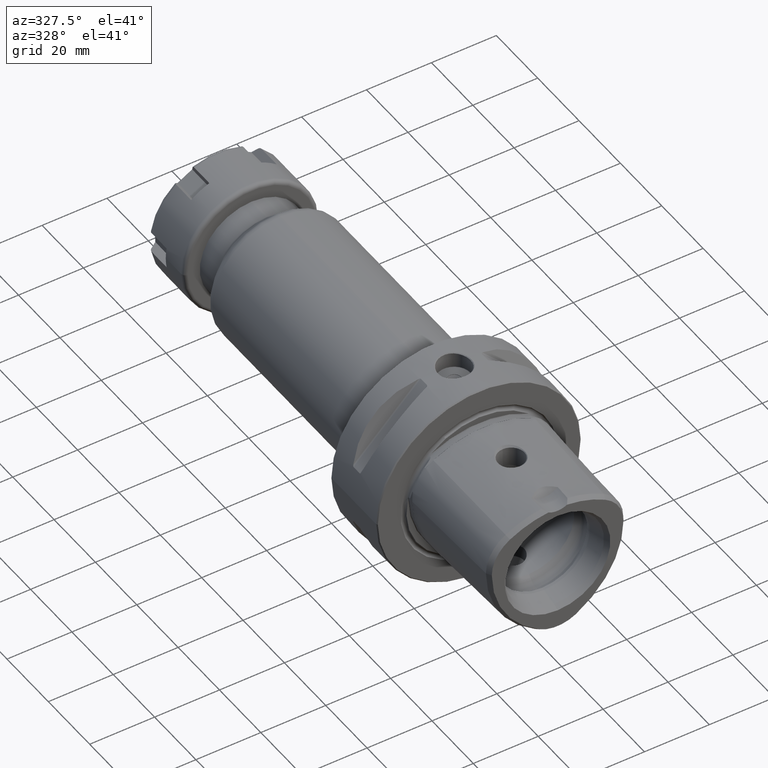
[diagram: clean part render]
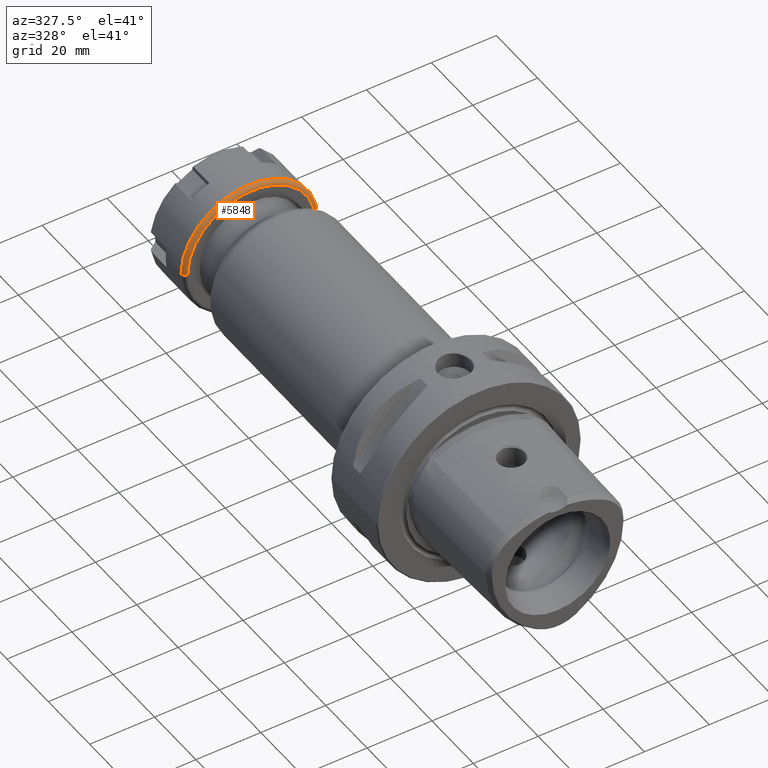
[diagram: same view with one face highlighted and labeled with its STEP entity id]
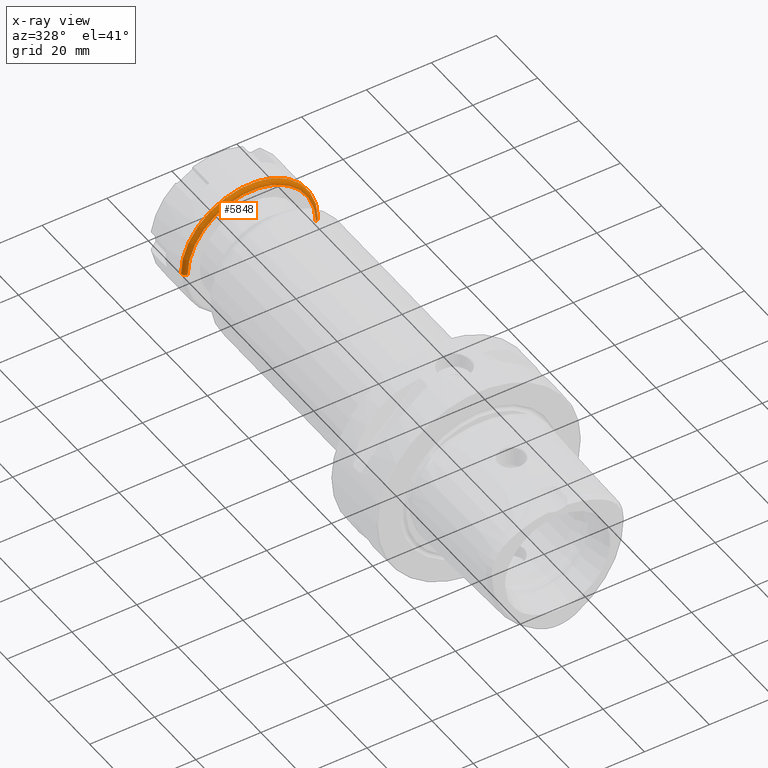
[diagram: x-ray of the same camera — body ghosted, the highlighted face saturated]
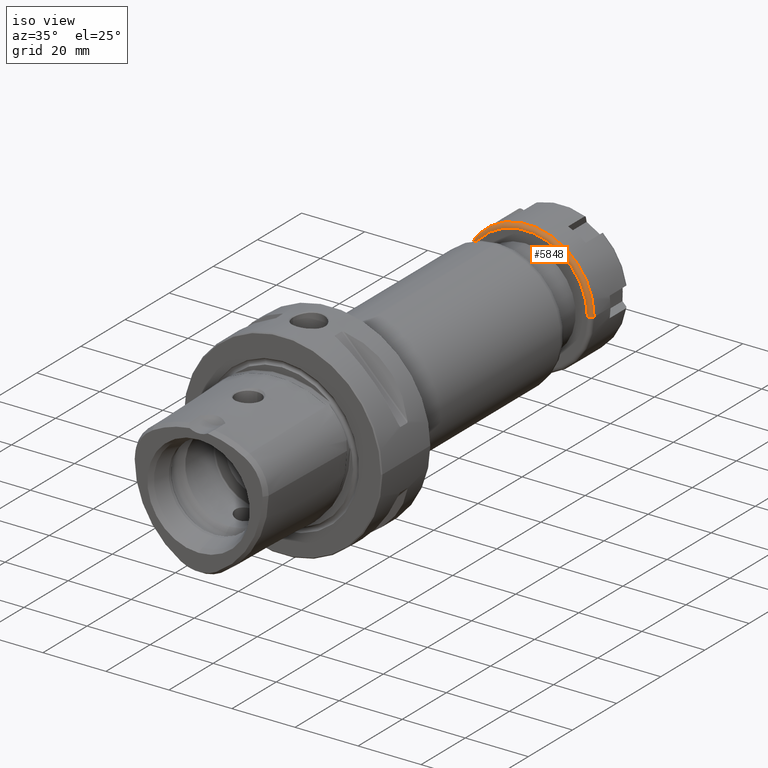
[diagram: same view with one face highlighted and labeled with its STEP entity id]
A machine part, auxiliary view. The second image highlights one B-rep face of the part: STEP entity #5848.
The next image is the same camera in x-ray: the body ghosted, the highlighted face saturated — about 2% of this face is hidden behind the body in this view.
A second angle (iso view) of the same face is appended — the face is thin or edge-on in the first view.
In plain terms, the highlighted toroidal blend (fillet) surface has major radius 19.75 mm and minor (blend) radius 1.25 mm.
Its self-contained STEP definition (entity closure, byte-faithful):
#4854=CARTESIAN_POINT('',(1.25E0,0.E0,0.E0));
#4855=DIRECTION('',(-1.E0,0.E0,0.E0));
#4856=DIRECTION('',(0.E0,-1.E0,0.E0));
#4857=AXIS2_PLACEMENT_3D('',#4854,#4855,#4856);
#4898=CARTESIAN_POINT('',(1.25E0,-1.975E1,0.E0));
#4899=DIRECTION('',(0.E0,0.E0,1.E0));
#4900=DIRECTION('',(-1.E0,0.E0,0.E0));
#4901=AXIS2_PLACEMENT_3D('',#4898,#4899,#4900);
#4908=CARTESIAN_POINT('',(-2.420286193683E-14,0.E0,0.E0));
#4909=DIRECTION('',(-1.E0,0.E0,0.E0));
#4910=DIRECTION('',(0.E0,-1.E0,0.E0));
#4911=AXIS2_PLACEMENT_3D('',#4908,#4909,#4910);
#4913=CARTESIAN_POINT('',(1.25E0,1.975E1,1.124100812433E-14));
#4914=DIRECTION('',(0.E0,0.E0,-1.E0));
#4915=DIRECTION('',(-1.E0,0.E0,0.E0));
#4916=AXIS2_PLACEMENT_3D('',#4913,#4914,#4915);
#5107=CARTESIAN_POINT('',(0.E0,1.975E1,0.E0));
#5108=CARTESIAN_POINT('',(-4.569356216284E-14,-1.975E1,0.E0));
#5109=VERTEX_POINT('',#5107);
#5110=VERTEX_POINT('',#5108);
#5111=CARTESIAN_POINT('',(1.25E0,2.1E1,0.E0));
#5112=CARTESIAN_POINT('',(1.25E0,-2.1E1,0.E0));
#5113=VERTEX_POINT('',#5111);
#5114=VERTEX_POINT('',#5112);
#5834=CARTESIAN_POINT('',(1.25E0,0.E0,0.E0));
#5835=DIRECTION('',(1.E0,0.E0,0.E0));
#5836=DIRECTION('',(0.E0,-9.999459026577E-1,-1.040152671667E-2));
#5837=AXIS2_PLACEMENT_3D('',#5834,#5835,#5836);
#5838=TOROIDAL_SURFACE('',#5837,1.975E1,1.25E0);
#5840=ORIENTED_EDGE('',*,*,#5839,.T.);
#5842=ORIENTED_EDGE('',*,*,#5841,.T.);
#5843=ORIENTED_EDGE('',*,*,#5798,.F.);
#5845=ORIENTED_EDGE('',*,*,#5844,.F.);
#5846=EDGE_LOOP('',(#5840,#5842,#5843,#5845));
#5847=FACE_OUTER_BOUND('',#5846,.F.);
#5848=ADVANCED_FACE('',(#5847),#5838,.T.);
#4858=CIRCLE('',#4857,2.1E1);
#4902=CIRCLE('',#4901,1.25E0);
#4912=CIRCLE('',#4911,1.975E1);
#4917=CIRCLE('',#4916,1.25E0);
#5798=EDGE_CURVE('',#5114,#5113,#4858,.T.);
#5839=EDGE_CURVE('',#5110,#5109,#4912,.T.);
#5841=EDGE_CURVE('',#5109,#5113,#4917,.T.);
#5844=EDGE_CURVE('',#5110,#5114,#4902,.T.);